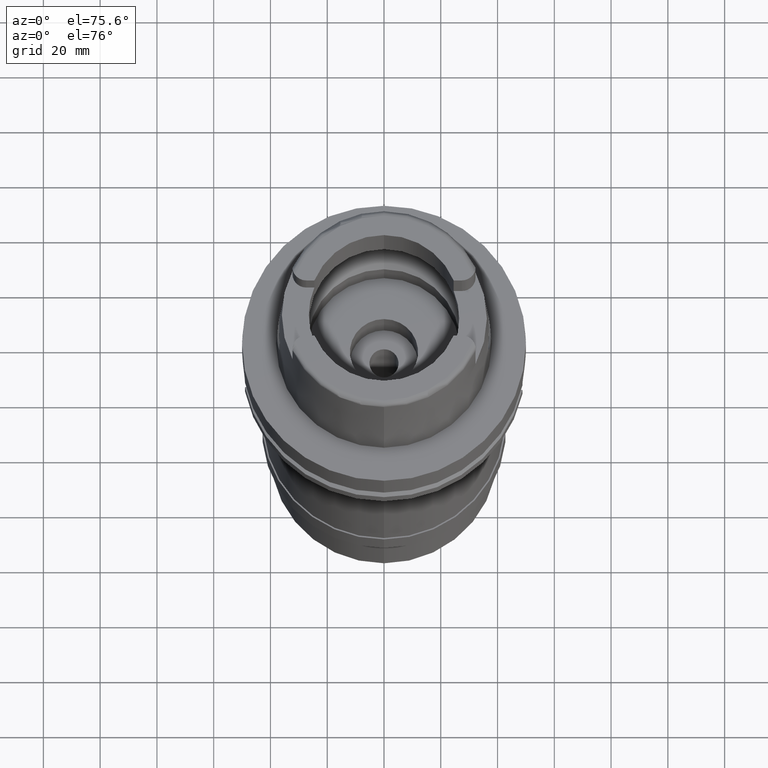
[diagram: clean part render]
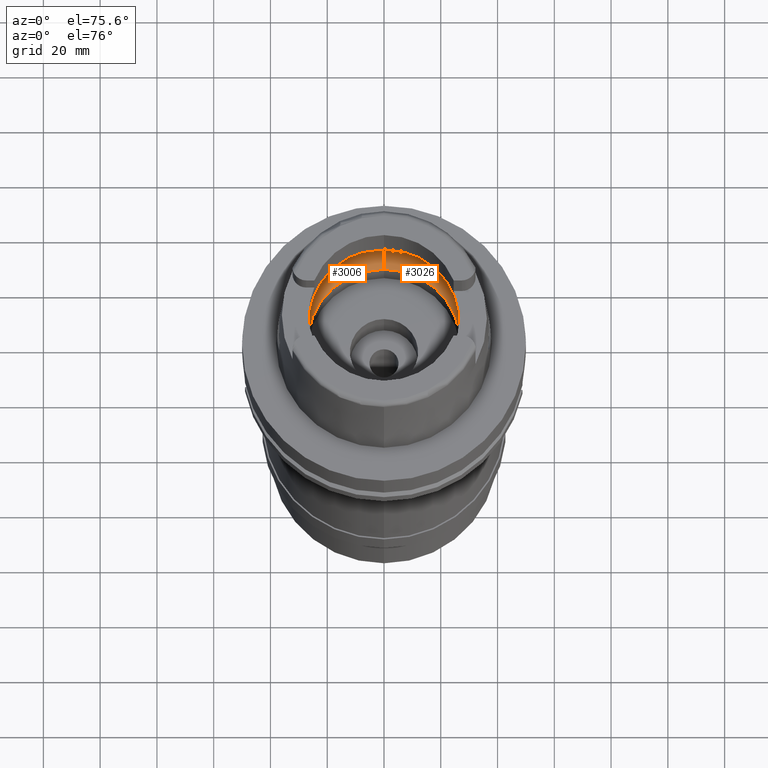
[diagram: same view with one multi-face feature highlighted, each face labeled with its STEP entity id]
A machine part, auxiliary view. The highlighted faces form ONE feature: a constant-radius fillet chain: 2 tangent blend faces with common blend radius 12 mm. The faces share edges in the B-rep.
Their STEP definitions:
[1] entity #3026 (Torus):
#622=CARTESIAN_POINT('',(0.E0,-1.95E1,9.496624327026E0));
#623=DIRECTION('',(-1.E0,0.E0,0.E0));
#624=DIRECTION('',(0.E0,-6.166666666667E-1,-7.872243785746E-1));
#625=AXIS2_PLACEMENT_3D('',#622,#623,#624);
#638=CARTESIAN_POINT('',(0.E0,0.E0,9.496624327026E0));
#639=DIRECTION('',(0.E0,0.E0,-1.E0));
#640=DIRECTION('',(9.971171061384E-1,-7.587803796965E-2,0.E0));
#641=AXIS2_PLACEMENT_3D('',#638,#639,#640);
#646=CARTESIAN_POINT('',(0.E0,0.E0,4.993178413024E-2));
#647=DIRECTION('',(0.E0,0.E0,1.E0));
#648=DIRECTION('',(0.E0,-1.E0,0.E0));
#649=AXIS2_PLACEMENT_3D('',#646,#647,#648);
#654=CARTESIAN_POINT('',(0.E0,1.95E1,9.496624327026E0));
#655=DIRECTION('',(1.E0,0.E0,0.E0));
#656=DIRECTION('',(0.E0,6.166666666667E-1,-7.872243785746E-1));
#657=AXIS2_PLACEMENT_3D('',#654,#655,#656);
#662=CARTESIAN_POINT('',(0.E0,0.E0,9.496624327026E0));
#663=DIRECTION('',(0.E0,0.E0,-1.E0));
#664=DIRECTION('',(0.E0,1.E0,0.E0));
#665=AXIS2_PLACEMENT_3D('',#662,#663,#664);
#683=CARTESIAN_POINT('',(3.140918884336E1,-2.390158196044E0,9.496624327026E0));
#688=CARTESIAN_POINT('',(3.140918884336E1,-2.390158196044E0,9.496624327026E0));
#689=CARTESIAN_POINT('',(3.142821196846E1,-2.140174354078E0,9.388054430246E0));
#690=CARTESIAN_POINT('',(3.145848776669E1,-1.624945842832E0,9.204833437630E0));
#691=CARTESIAN_POINT('',(3.148418893715E1,-8.204045798769E-1,9.037462387011E0));
#692=CARTESIAN_POINT('',(3.148971910754E1,-2.735560710059E-1,9.E0));
#693=CARTESIAN_POINT('',(3.148971910754E1,0.E0,9.E0));
#731=CARTESIAN_POINT('',(3.140918884336E1,2.390158196044E0,9.496624327026E0));
#775=CARTESIAN_POINT('',(3.148971910754E1,0.E0,9.E0));
#776=CARTESIAN_POINT('',(3.148971910754E1,2.735594525988E-1,9.E0));
#777=CARTESIAN_POINT('',(3.148418882822E1,8.204125481032E-1,9.037463125870E0));
#778=CARTESIAN_POINT('',(3.145848718823E1,1.624958982739E0,9.204837194289E0));
#779=CARTESIAN_POINT('',(3.142821155983E1,2.140179723894E0,9.388056762399E0));
#780=CARTESIAN_POINT('',(3.140918884336E1,2.390158196044E0,9.496624327026E0));
#2357=CARTESIAN_POINT('',(0.E0,-3.15E1,9.496624327026E0));
#2358=VERTEX_POINT('',#2357);
#2359=CARTESIAN_POINT('',(0.E0,3.15E1,9.496624327026E0));
#2360=VERTEX_POINT('',#2359);
#2366=VERTEX_POINT('',#683);
#2367=VERTEX_POINT('',#693);
#2368=VERTEX_POINT('',#731);
#2369=CARTESIAN_POINT('',(0.E0,2.69E1,4.993178413024E-2));
#2370=VERTEX_POINT('',#2369);
#2371=CARTESIAN_POINT('',(0.E0,-2.69E1,4.993178413024E-2));
#2372=VERTEX_POINT('',#2371);
#3007=CARTESIAN_POINT('',(0.E0,0.E0,9.496624327026E0));
#3008=DIRECTION('',(0.E0,0.E0,1.E0));
#3009=DIRECTION('',(0.E0,1.E0,0.E0));
#3010=AXIS2_PLACEMENT_3D('',#3007,#3008,#3009);
#3011=TOROIDAL_SURFACE('',#3010,1.95E1,1.2E1);
#3013=ORIENTED_EDGE('',*,*,#3012,.F.);
#3015=ORIENTED_EDGE('',*,*,#3014,.T.);
#3016=ORIENTED_EDGE('',*,*,#3001,.F.);
#3018=ORIENTED_EDGE('',*,*,#3017,.T.);
#3019=ORIENTED_EDGE('',*,*,#2997,.T.);
#3021=ORIENTED_EDGE('',*,*,#3020,.T.);
#3023=ORIENTED_EDGE('',*,*,#3022,.F.);
#3024=EDGE_LOOP('',(#3013,#3015,#3016,#3018,#3019,#3021,#3023));
#3025=FACE_OUTER_BOUND('',#3024,.F.);
#626=CIRCLE('',#625,1.2E1);
#642=CIRCLE('',#641,3.15E1);
#650=CIRCLE('',#649,2.69E1);
#658=CIRCLE('',#657,1.2E1);
#666=CIRCLE('',#665,3.15E1);
#694=B_SPLINE_CURVE_WITH_KNOTS('',3,(#688,#689,#690,#691,#692,#693),
.UNSPECIFIED.,.F.,.F.,(4,1,1,4),(0.E0,3.333333333333E-1,6.666666666667E-1,1.E0),
.UNSPECIFIED.);
#781=B_SPLINE_CURVE_WITH_KNOTS('',3,(#775,#776,#777,#778,#779,#780),
.UNSPECIFIED.,.F.,.F.,(4,1,1,4),(0.E0,3.333333333333E-1,6.666666666667E-1,1.E0),
.UNSPECIFIED.);
#2997=EDGE_CURVE('',#2370,#2360,#658,.T.);
#3001=EDGE_CURVE('',#2372,#2358,#626,.T.);
#3012=EDGE_CURVE('',#2366,#2367,#694,.T.);
#3014=EDGE_CURVE('',#2366,#2358,#642,.T.);
#3017=EDGE_CURVE('',#2372,#2370,#650,.T.);
#3020=EDGE_CURVE('',#2360,#2368,#666,.T.);
#3022=EDGE_CURVE('',#2367,#2368,#781,.T.);
#3026=ADVANCED_FACE('',(#3025),#3011,.F.);
[2] entity #3006 (Torus):
#498=CARTESIAN_POINT('',(-3.140918884336E1,-2.390158196044E0,9.496624327026E0));
#542=CARTESIAN_POINT('',(-3.148971910754E1,0.E0,9.E0));
#543=CARTESIAN_POINT('',(-3.148971910754E1,-2.735561604717E-1,9.E0));
#544=CARTESIAN_POINT('',(-3.148418893354E1,-8.204047880593E-1,
9.037462411515E0));
#545=CARTESIAN_POINT('',(-3.145848775708E1,-1.624946043736E0,9.204833498216E0));
#546=CARTESIAN_POINT('',(-3.142821196222E1,-2.140174436096E0,9.388054465868E0));
#547=CARTESIAN_POINT('',(-3.140918884336E1,-2.390158196044E0,9.496624327026E0));
#570=CARTESIAN_POINT('',(-3.140918884336E1,2.390158196044E0,9.496624327026E0));
#571=CARTESIAN_POINT('',(-3.142821156635E1,2.140179638288E0,9.388056725219E0));
#572=CARTESIAN_POINT('',(-3.145848719827E1,1.624958773048E0,9.204837131052E0));
#573=CARTESIAN_POINT('',(-3.148418883199E1,8.204123308092E-1,9.037463100293E0));
#574=CARTESIAN_POINT('',(-3.148971910754E1,2.735593592173E-1,9.E0));
#575=CARTESIAN_POINT('',(-3.148971910754E1,0.E0,9.E0));
#606=CARTESIAN_POINT('',(0.E0,0.E0,9.496624327026E0));
#607=DIRECTION('',(0.E0,0.E0,-1.E0));
#608=DIRECTION('',(-9.971171061384E-1,7.587803796965E-2,0.E0));
#609=AXIS2_PLACEMENT_3D('',#606,#607,#608);
#614=CARTESIAN_POINT('',(0.E0,0.E0,4.993178413024E-2));
#615=DIRECTION('',(0.E0,0.E0,1.E0));
#616=DIRECTION('',(0.E0,1.E0,0.E0));
#617=AXIS2_PLACEMENT_3D('',#614,#615,#616);
#622=CARTESIAN_POINT('',(0.E0,-1.95E1,9.496624327026E0));
#623=DIRECTION('',(-1.E0,0.E0,0.E0));
#624=DIRECTION('',(0.E0,-6.166666666667E-1,-7.872243785746E-1));
#625=AXIS2_PLACEMENT_3D('',#622,#623,#624);
#630=CARTESIAN_POINT('',(0.E0,0.E0,9.496624327026E0));
#631=DIRECTION('',(0.E0,0.E0,-1.E0));
#632=DIRECTION('',(0.E0,-1.E0,0.E0));
#633=AXIS2_PLACEMENT_3D('',#630,#631,#632);
#654=CARTESIAN_POINT('',(0.E0,1.95E1,9.496624327026E0));
#655=DIRECTION('',(1.E0,0.E0,0.E0));
#656=DIRECTION('',(0.E0,6.166666666667E-1,-7.872243785746E-1));
#657=AXIS2_PLACEMENT_3D('',#654,#655,#656);
#2355=VERTEX_POINT('',#498);
#2357=CARTESIAN_POINT('',(0.E0,-3.15E1,9.496624327026E0));
#2358=VERTEX_POINT('',#2357);
#2359=CARTESIAN_POINT('',(0.E0,3.15E1,9.496624327026E0));
#2360=VERTEX_POINT('',#2359);
#2361=CARTESIAN_POINT('',(-3.140918884336E1,2.390158196044E0,9.496624327026E0));
#2362=VERTEX_POINT('',#2361);
#2363=CARTESIAN_POINT('',(-3.148971910754E1,0.E0,9.E0));
#2364=VERTEX_POINT('',#2363);
#2369=CARTESIAN_POINT('',(0.E0,2.69E1,4.993178413024E-2));
#2370=VERTEX_POINT('',#2369);
#2371=CARTESIAN_POINT('',(0.E0,-2.69E1,4.993178413024E-2));
#2372=VERTEX_POINT('',#2371);
#2989=CARTESIAN_POINT('',(0.E0,0.E0,9.496624327026E0));
#2990=DIRECTION('',(0.E0,0.E0,1.E0));
#2991=DIRECTION('',(0.E0,1.E0,0.E0));
#2992=AXIS2_PLACEMENT_3D('',#2989,#2990,#2991);
#2993=TOROIDAL_SURFACE('',#2992,1.95E1,1.2E1);
#2994=ORIENTED_EDGE('',*,*,#2970,.F.);
#2995=ORIENTED_EDGE('',*,*,#2981,.F.);
#2996=ORIENTED_EDGE('',*,*,#2952,.T.);
#2998=ORIENTED_EDGE('',*,*,#2997,.F.);
#3000=ORIENTED_EDGE('',*,*,#2999,.T.);
#3002=ORIENTED_EDGE('',*,*,#3001,.T.);
#3003=ORIENTED_EDGE('',*,*,#2945,.T.);
#3004=EDGE_LOOP('',(#2994,#2995,#2996,#2998,#3000,#3002,#3003));
#3005=FACE_OUTER_BOUND('',#3004,.F.);
#548=B_SPLINE_CURVE_WITH_KNOTS('',3,(#542,#543,#544,#545,#546,#547),
.UNSPECIFIED.,.F.,.F.,(4,1,1,4),(0.E0,3.333333333333E-1,6.666666666667E-1,1.E0),
.UNSPECIFIED.);
#576=B_SPLINE_CURVE_WITH_KNOTS('',3,(#570,#571,#572,#573,#574,#575),
.UNSPECIFIED.,.F.,.F.,(4,1,1,4),(0.E0,3.333333333333E-1,6.666666666667E-1,1.E0),
.UNSPECIFIED.);
#610=CIRCLE('',#609,3.15E1);
#618=CIRCLE('',#617,2.69E1);
#626=CIRCLE('',#625,1.2E1);
#634=CIRCLE('',#633,3.15E1);
#658=CIRCLE('',#657,1.2E1);
#2945=EDGE_CURVE('',#2358,#2355,#634,.T.);
#2952=EDGE_CURVE('',#2362,#2360,#610,.T.);
#2970=EDGE_CURVE('',#2364,#2355,#548,.T.);
#2981=EDGE_CURVE('',#2362,#2364,#576,.T.);
#2997=EDGE_CURVE('',#2370,#2360,#658,.T.);
#2999=EDGE_CURVE('',#2370,#2372,#618,.T.);
#3001=EDGE_CURVE('',#2372,#2358,#626,.T.);
#3006=ADVANCED_FACE('',(#3005),#2993,.F.);